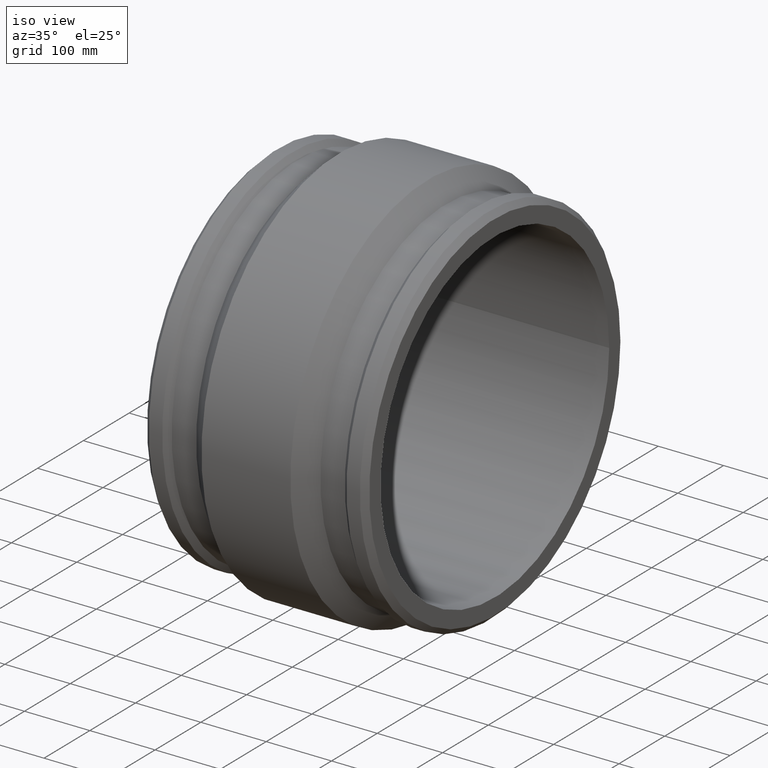
[diagram: clean part render]
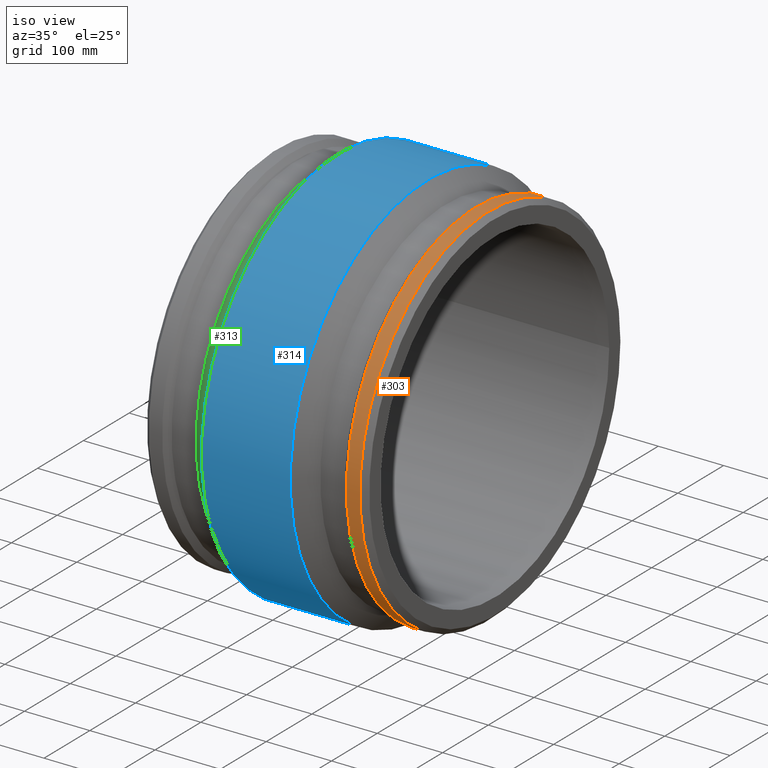
[diagram: same view with three faces highlighted in distinct colors, each labeled with its STEP entity id]
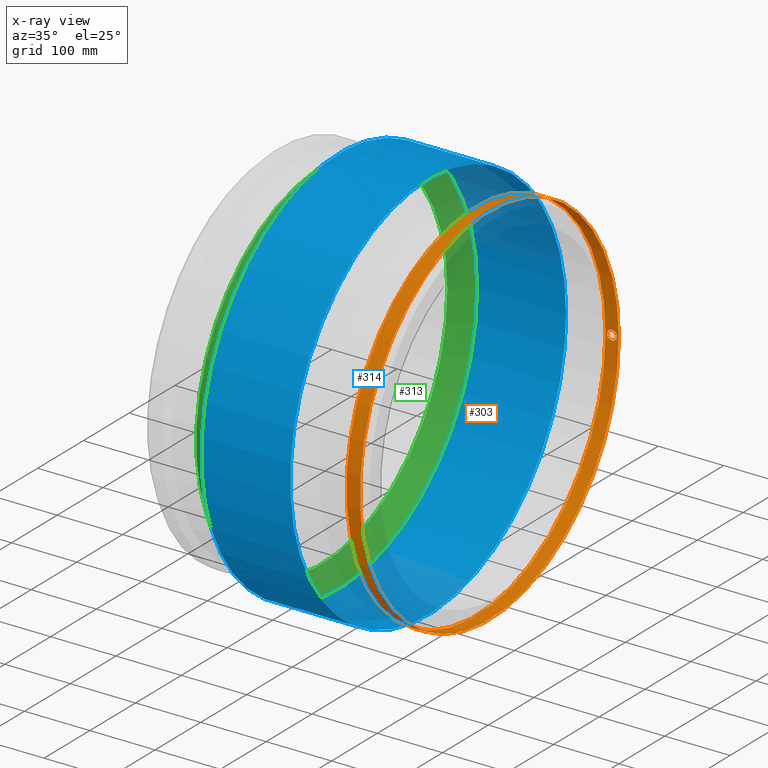
[diagram: x-ray of the same camera — body ghosted, the three highlighted faces saturated]
A machine part, iso view with three faces highlighted in distinct colors.
The next image is the same camera in x-ray (body ghosted, the three faces saturated) — at least one of them is partly hidden behind the body in this view.
Their STEP definitions:

[orange] entity #303 — the highlighted cylindrical surface (bore or boss wall) has radius 283 mm, axis along (1, 0, 0).
#21=B_SPLINE_CURVE_WITH_KNOTS('',3,(#512,#513,#514,#515,#516,#517,#518,
#519,#520,#521,#522,#523,#524,#525,#526,#527,#528,#529),.UNSPECIFIED.,.F.,
 .F.,(4,2,2,2,2,2,2,2,4),(1.13011682923147,1.41264603418803,1.69517523914459,
1.97770444880377,2.26023365846295,2.54276286812212,2.8252920777813,3.10782128273786,
3.39035048769442),.UNSPECIFIED.);
#22=B_SPLINE_CURVE_WITH_KNOTS('',3,(#532,#533,#534,#535,#536,#537,#538,
#539,#540,#541,#542,#543,#544,#545,#546,#547,#548,#549,#550),
 .UNSPECIFIED.,.F.,.F.,(4,2,2,2,3,2,2,2,4),(-1.13011682923147,-0.847587624274914,
-0.565058419318355,-0.282529209659177,0.,0.282529209659177,0.565058419318354,
0.847587624274914,1.13011682923147),.UNSPECIFIED.);
#31=FACE_BOUND('',#108,.T.);
#32=FACE_BOUND('',#109,.T.);
#54=CYLINDRICAL_SURFACE('',#342,283.);
#73=FACE_OUTER_BOUND('',#107,.T.);
#107=EDGE_LOOP('',(#244));
#108=EDGE_LOOP('',(#245,#246));
#109=EDGE_LOOP('',(#247));
#152=CIRCLE('',#343,283.);
#153=CIRCLE('',#344,283.);
#176=VERTEX_POINT('',#510);
#177=VERTEX_POINT('',#511);
#178=VERTEX_POINT('',#554);
#179=VERTEX_POINT('',#556);
#202=EDGE_CURVE('',#176,#177,#21,.T.);
#204=EDGE_CURVE('',#177,#176,#22,.T.);
#206=EDGE_CURVE('',#178,#178,#152,.T.);
#207=EDGE_CURVE('',#179,#179,#153,.T.);
#244=ORIENTED_EDGE('',*,*,#206,.T.);
#245=ORIENTED_EDGE('',*,*,#204,.T.);
#246=ORIENTED_EDGE('',*,*,#202,.T.);
#247=ORIENTED_EDGE('',*,*,#207,.F.);
#303=ADVANCED_FACE('',(#73,#31,#32),#54,.T.);
#342=AXIS2_PLACEMENT_3D('',#553,#417,#418);
#343=AXIS2_PLACEMENT_3D('',#555,#419,#420);
#344=AXIS2_PLACEMENT_3D('',#557,#421,#422);
#417=DIRECTION('center_axis',(1.,1.83697019872103E-16,0.));
#418=DIRECTION('ref_axis',(-1.77635683940025E-16,1.,0.));
#419=DIRECTION('center_axis',(1.,1.83697019872103E-16,0.));
#420=DIRECTION('ref_axis',(0.,0.,-1.));
#421=DIRECTION('center_axis',(1.,1.83697019872103E-16,0.));
#422=DIRECTION('ref_axis',(0.,0.,-1.));
#510=CARTESIAN_POINT('',(143.8,283.,0.));
#511=CARTESIAN_POINT('',(158.8,283.,9.18485099360515E-16));
#512=CARTESIAN_POINT('Ctrl Pts',(143.8,283.,-3.88578058618805E-15));
#513=CARTESIAN_POINT('Ctrl Pts',(143.8,283.,-0.941764016521868));
#514=CARTESIAN_POINT('Ctrl Pts',(143.988220769489,282.994815743762,-1.94627096837092));
#515=CARTESIAN_POINT('Ctrl Pts',(144.753636937917,282.976074062244,-3.7941029043155));
#516=CARTESIAN_POINT('Ctrl Pts',(145.330829895338,282.962785124906,-4.6374316131365));
#517=CARTESIAN_POINT('Ctrl Pts',(146.662568397947,282.937824522905,-5.96917011574492));
#518=CARTESIAN_POINT('Ctrl Pts',(147.505897101103,282.92453354899,-6.54636306621528));
#519=CARTESIAN_POINT('Ctrl Pts',(149.353729022213,282.905787211788,-7.31177922472257));
#520=CARTESIAN_POINT('Ctrl Pts',(150.358235967803,282.900600918415,-7.5));
#521=CARTESIAN_POINT('Ctrl Pts',(152.241764032197,282.900600918415,-7.5));
#522=CARTESIAN_POINT('Ctrl Pts',(153.246270977787,282.905787211788,-7.31177922472257));
#523=CARTESIAN_POINT('Ctrl Pts',(155.094102898897,282.92453354899,-6.54636306621528));
#524=CARTESIAN_POINT('Ctrl Pts',(155.937431602053,282.937824522905,-5.96917011574492));
#525=CARTESIAN_POINT('Ctrl Pts',(157.269170104662,282.962785124906,-4.6374316131365));
#526=CARTESIAN_POINT('Ctrl Pts',(157.846363062083,282.976074062244,-3.79410290431551));
#527=CARTESIAN_POINT('Ctrl Pts',(158.611779230511,282.994815743762,-1.94627096837092));
#528=CARTESIAN_POINT('Ctrl Pts',(158.8,283.,-0.941764016521866));
#529=CARTESIAN_POINT('Ctrl Pts',(158.8,283.,-8.32667268468867E-16));
#532=CARTESIAN_POINT('Ctrl Pts',(158.8,283.,-1.11022302462516E-15));
#533=CARTESIAN_POINT('Ctrl Pts',(158.8,283.,0.941764016521864));
#534=CARTESIAN_POINT('Ctrl Pts',(158.611779230511,282.994815743762,1.94627096837092));
#535=CARTESIAN_POINT('Ctrl Pts',(157.846363062083,282.976074062244,3.7941029043155));
#536=CARTESIAN_POINT('Ctrl Pts',(157.269170104662,282.962785124906,4.6374316131365));
#537=CARTESIAN_POINT('Ctrl Pts',(155.937431602053,282.937824522905,5.96917011574492));
#538=CARTESIAN_POINT('Ctrl Pts',(155.094102898897,282.92453354899,6.54636306621528));
#539=CARTESIAN_POINT('Ctrl Pts',(153.246270977787,282.905787211788,7.31177922472257));
#540=CARTESIAN_POINT('Ctrl Pts',(152.241764032197,282.900600918415,7.5));
#541=CARTESIAN_POINT('Ctrl Pts',(151.3,282.900600918415,7.5));
#542=CARTESIAN_POINT('Ctrl Pts',(150.358235967803,282.900600918415,7.5));
#543=CARTESIAN_POINT('Ctrl Pts',(149.353729022213,282.905787211788,7.31177922472257));
#544=CARTESIAN_POINT('Ctrl Pts',(147.505897101103,282.92453354899,6.54636306621528));
#545=CARTESIAN_POINT('Ctrl Pts',(146.662568397947,282.937824522905,5.96917011574492));
#546=CARTESIAN_POINT('Ctrl Pts',(145.330829895338,282.962785124906,4.6374316131365));
#547=CARTESIAN_POINT('Ctrl Pts',(144.753636937917,282.976074062244,3.7941029043155));
#548=CARTESIAN_POINT('Ctrl Pts',(143.988220769489,282.994815743762,1.94627096837092));
#549=CARTESIAN_POINT('Ctrl Pts',(143.8,283.,0.941764016521869));
#550=CARTESIAN_POINT('Ctrl Pts',(143.8,283.,3.88578058618805E-15));
#553=CARTESIAN_POINT('Origin',(151.3,5.90218524849067E-14,0.));
#554=CARTESIAN_POINT('',(141.09,283.,0.));
#555=CARTESIAN_POINT('Origin',(141.09,5.71463059120125E-14,0.));
#556=CARTESIAN_POINT('',(161.51,283.,0.));
#557=CARTESIAN_POINT('Origin',(161.51,6.08973990578009E-14,0.));

[blue] entity #314 — the highlighted cylindrical surface (bore or boss wall) has radius 301.5 mm, axis along (1, 0, 0).
#42=FACE_BOUND('',#130,.T.);
#60=CYLINDRICAL_SURFACE('',#365,301.5);
#84=FACE_OUTER_BOUND('',#129,.T.);
#129=EDGE_LOOP('',(#271));
#130=EDGE_LOOP('',(#272));
#163=CIRCLE('',#364,301.5);
#164=CIRCLE('',#366,301.5);
#189=VERTEX_POINT('',#623);
#190=VERTEX_POINT('',#626);
#219=EDGE_CURVE('',#189,#189,#163,.T.);
#220=EDGE_CURVE('',#190,#190,#164,.T.);
#271=ORIENTED_EDGE('',*,*,#219,.T.);
#272=ORIENTED_EDGE('',*,*,#220,.F.);
#314=ADVANCED_FACE('',(#84,#42),#60,.T.);
#364=AXIS2_PLACEMENT_3D('',#624,#461,#462);
#365=AXIS2_PLACEMENT_3D('',#625,#463,#464);
#366=AXIS2_PLACEMENT_3D('',#627,#465,#466);
#461=DIRECTION('center_axis',(1.,1.83697019872103E-16,0.));
#462=DIRECTION('ref_axis',(0.,0.,-1.));
#463=DIRECTION('center_axis',(1.,1.83697019872103E-16,0.));
#464=DIRECTION('ref_axis',(-1.77635683940025E-16,1.,0.));
#465=DIRECTION('center_axis',(1.,1.83697019872103E-16,0.));
#466=DIRECTION('ref_axis',(0.,0.,-1.));
#623=CARTESIAN_POINT('',(-68.0000000000001,301.5,0.));
#624=CARTESIAN_POINT('Origin',(-68.,1.87370960269545E-14,0.));
#625=CARTESIAN_POINT('Origin',(0.,3.12284933782575E-14,0.));
#626=CARTESIAN_POINT('',(68.,301.5,0.));
#627=CARTESIAN_POINT('Origin',(68.,4.37198907295605E-14,0.));

[green] entity #313 — the highlighted conical surface has half-angle 45 deg.
#17=CONICAL_SURFACE('',#363,288.005,45.);
#41=FACE_BOUND('',#128,.T.);
#83=FACE_OUTER_BOUND('',#127,.T.);
#127=EDGE_LOOP('',(#269));
#128=EDGE_LOOP('',(#270));
#162=CIRCLE('',#362,274.51);
#163=CIRCLE('',#364,301.5);
#188=VERTEX_POINT('',#620);
#189=VERTEX_POINT('',#623);
#218=EDGE_CURVE('',#188,#188,#162,.T.);
#219=EDGE_CURVE('',#189,#189,#163,.T.);
#269=ORIENTED_EDGE('',*,*,#218,.T.);
#270=ORIENTED_EDGE('',*,*,#219,.F.);
#313=ADVANCED_FACE('',(#83,#41),#17,.T.);
#362=AXIS2_PLACEMENT_3D('',#621,#457,#458);
#363=AXIS2_PLACEMENT_3D('',#622,#459,#460);
#364=AXIS2_PLACEMENT_3D('',#624,#461,#462);
#457=DIRECTION('center_axis',(1.,1.83697019872103E-16,0.));
#458=DIRECTION('ref_axis',(0.,0.,-1.));
#459=DIRECTION('center_axis',(1.,1.83697019872103E-16,0.));
#460=DIRECTION('ref_axis',(-1.77635683940025E-16,1.,0.));
#461=DIRECTION('center_axis',(1.,1.83697019872103E-16,0.));
#462=DIRECTION('ref_axis',(0.,0.,-1.));
#620=CARTESIAN_POINT('',(-94.9900000000001,274.51,0.));
#621=CARTESIAN_POINT('Origin',(-94.99,1.37791134606064E-14,0.));
#622=CARTESIAN_POINT('Origin',(-81.495,1.62581047437805E-14,0.));
#623=CARTESIAN_POINT('',(-68.0000000000001,301.5,0.));
#624=CARTESIAN_POINT('Origin',(-68.,1.87370960269545E-14,0.));